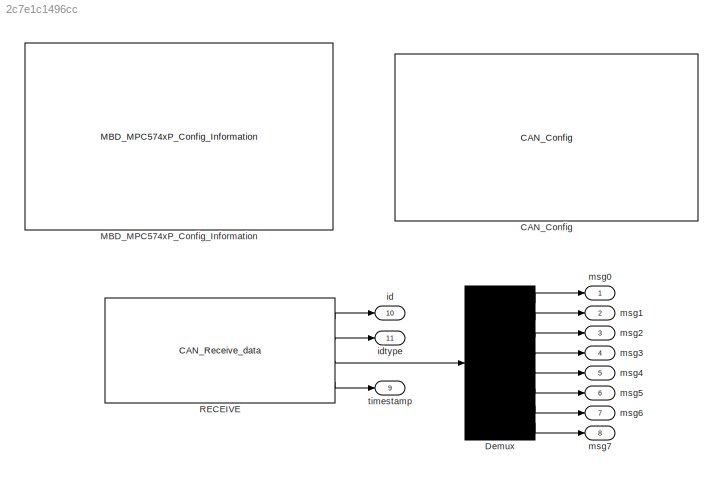
MODEL slx_2c7e1c1496cc
KIND model
CONFIG AbsTol = auto
CONFIG EnableMultiTasking = off
CONFIG FixedStep = 1e-3
CONFIG InitFcn = mbd_pnt_consistency_checks(bdroot(gcs));
CONFIG MaxStep = auto
CONFIG MinStep = auto
CONFIG RelTol = 1e-3
CONFIG SampleTimeConstraint = Unconstrained
CONFIG Solver = FixedStepDiscrete
CONFIG SolverName = FixedStepDiscrete
CONFIG StartTime = 0.0
CONFIG StopTime = 10.0
BLOCK [Reference] CAN_Config  REF=mbd_pnt_ec_toolbox/MPC574xP/Communication Blocks/CAN_Config
  Ports = []
  Priority = 1
  SourceBlock = mbd_pnt_ec_toolbox/MPC574xP/Communication Blocks/CAN_Config
  SourceProductName = Model Based Design Toolbox for MPC574xP
  SourceType = flexcan_pnt_config_block
BLOCK [Demux] Demux
  DisplayOption = bar
  Outputs = 8
  Ports = [1, 8]
BLOCK [Reference] MBD_MPC574xP_Config_Information  REF=mbd_pnt_ec_toolbox/MPC574xP/MBD_MPC574xP_Config_Information
  Ports = []
  SourceBlock = mbd_pnt_ec_toolbox/MPC574xP/MBD_MPC574xP_Config_Information
  SourceProductName = Model Based Design Toolbox for MPC574xP
  SourceType = MBDTBX_EC_PNT
BLOCK [Reference] RECEIVE  REF=mbd_pnt_ec_toolbox/MPC574xP/Communication Blocks/CAN_Receive_data
  Ports = [0, 4]
  SourceBlock = mbd_pnt_ec_toolbox/MPC574xP/Communication Blocks/CAN_Receive_data
  SourceProductName = Model Based Design Toolbox for MPC574xP
  SourceType = flexcan_pnt_receive_data_block
BLOCK [Outport] id
  IconDisplay = Port number
  Port = 10
BLOCK [Outport] idtype
  IconDisplay = Port number
  Port = 11
BLOCK [Outport] msg0
  IconDisplay = Port number
BLOCK [Outport] msg1
  IconDisplay = Port number
  Port = 2
BLOCK [Outport] msg2
  IconDisplay = Port number
  Port = 3
BLOCK [Outport] msg3
  IconDisplay = Port number
  Port = 4
BLOCK [Outport] msg4
  IconDisplay = Port number
  Port = 5
BLOCK [Outport] msg5
  IconDisplay = Port number
  Port = 6
BLOCK [Outport] msg6
  IconDisplay = Port number
  Port = 7
BLOCK [Outport] msg7
  IconDisplay = Port number
  Port = 8
BLOCK [Outport] timestamp
  IconDisplay = Port number
  Port = 9
LINE Demux:1 -> msg0:1
LINE Demux:2 -> msg1:1
LINE Demux:3 -> msg2:1
LINE Demux:4 -> msg3:1
LINE Demux:5 -> msg4:1
LINE Demux:6 -> msg5:1
LINE Demux:7 -> msg6:1
LINE Demux:8 -> msg7:1
LINE RECEIVE:1 -> id:1
LINE RECEIVE:2 -> idtype:1
LINE RECEIVE:3 -> Demux:1
LINE RECEIVE:4 -> timestamp:1
